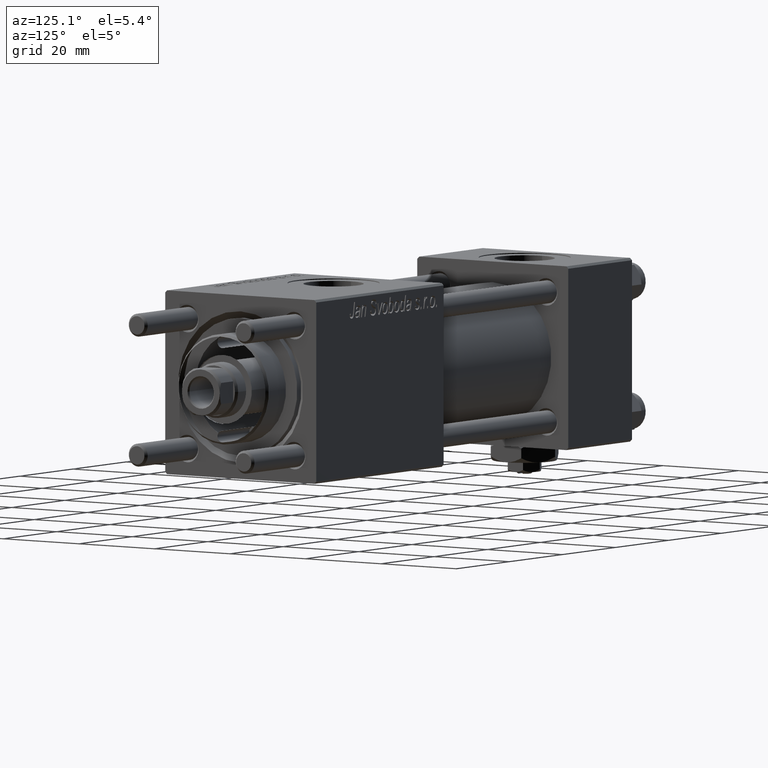
[diagram: clean part render]
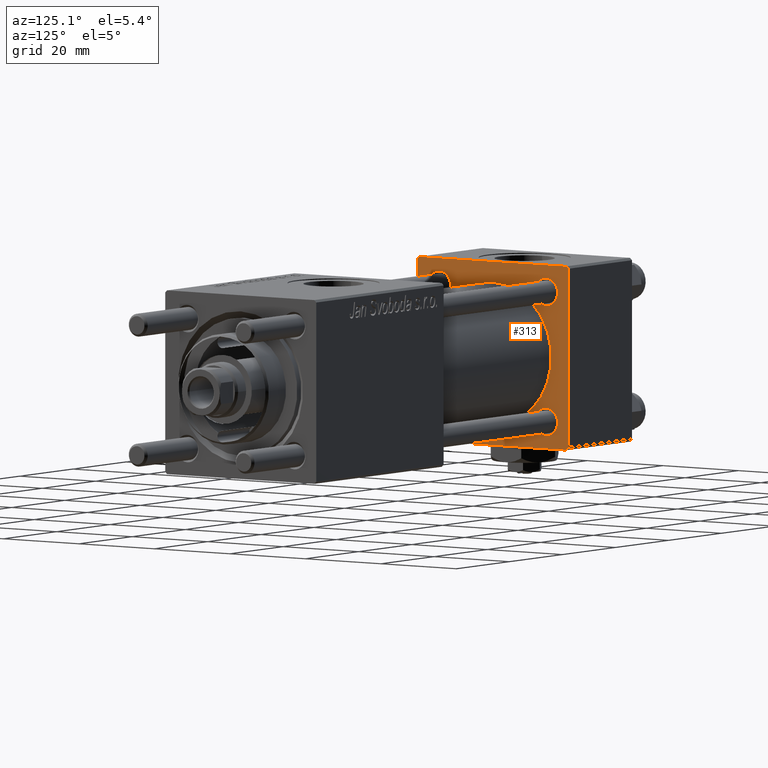
[diagram: same view with one face highlighted and labeled with its STEP entity id]
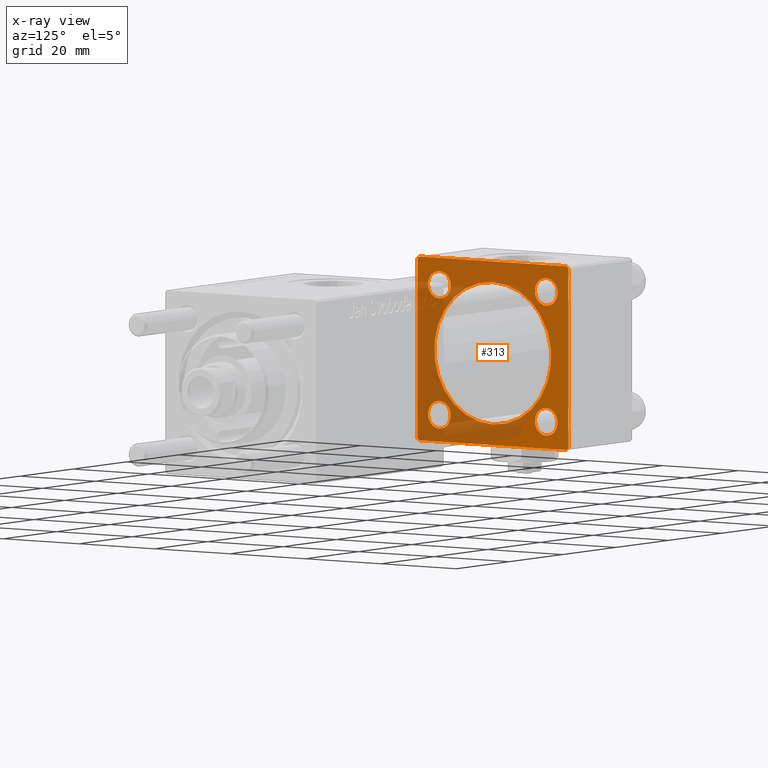
[diagram: x-ray of the same camera — body ghosted, the highlighted face saturated]
A machine part, auxiliary view. The second image highlights one B-rep face of the part: STEP entity #313.
The next image is the same camera in x-ray: the body ghosted, the highlighted face saturated — about 40% of this face is hidden behind the body in this view.
In plain terms, the highlighted planar face has unit normal (-1, 0, 0).
Its self-contained STEP definition (entity closure, byte-faithful):
#313 = ADVANCED_FACE ( 'NONE', ( #16205, #39022, #56525, #30139, #43188, #2592 ), #42609, .F. ) ;
#660 = DIRECTION ( 'NONE',  ( 0.000000000000000000, 0.000000000000000000, 1.000000000000000000 ) ) ;
#723 = DIRECTION ( 'NONE',  ( 0.000000000000000000, 0.000000000000000000, 1.000000000000000000 ) ) ;
#2015 = LINE ( 'NONE', #6460, #24792 ) ;
#2039 = AXIS2_PLACEMENT_3D ( 'NONE', #58540, #27987, #13169 ) ;
#2069 = LINE ( 'NONE', #54963, #7809 ) ;
#2163 = EDGE_CURVE ( 'NONE', #5548, #53330, #49706, .T. ) ;
#2592 = FACE_OUTER_BOUND ( 'NONE', #30805, .T. ) ;
#2683 = CARTESIAN_POINT ( 'NONE',  ( 24.00000000000000000, 14.14999999999999858, 17.14999999999997726 ) ) ;
#2700 = DIRECTION ( 'NONE',  ( -0.000000000000000000, 0.7071067811865524577, 0.7071067811865426878 ) ) ;
#3296 = DIRECTION ( 'NONE',  ( 0.000000000000000000, 0.000000000000000000, 1.000000000000000000 ) ) ;
#3554 = DIRECTION ( 'NONE',  ( -1.000000000000000000, -0.000000000000000000, -0.000000000000000000 ) ) ;
#3641 = CARTESIAN_POINT ( 'NONE',  ( 24.00000000000000000, -20.00000000000000355, 19.49999999999998224 ) ) ;
#5537 = AXIS2_PLACEMENT_3D ( 'NONE', #48298, #3554, #21040 ) ;
#5548 = VERTEX_POINT ( 'NONE', #16017 ) ;
#5691 = CARTESIAN_POINT ( 'NONE',  ( 24.00000000000000000, -14.14999999999999503, 14.15000000000000391 ) ) ;
#6460 = CARTESIAN_POINT ( 'NONE',  ( 24.00000000000000000, -20.00000000000000355, 19.49999999999998224 ) ) ;
#6864 = VERTEX_POINT ( 'NONE', #34251 ) ;
#7695 = CIRCLE ( 'NONE', #32264, 2.999999999999976463 ) ;
#7781 = CARTESIAN_POINT ( 'NONE',  ( 24.00000000000000000, -20.00000000000000000, -19.49999999999999645 ) ) ;
#7809 = VECTOR ( 'NONE', #18817, 999.9999999999998863 ) ;
#8231 = ORIENTED_EDGE ( 'NONE', *, *, #30123, .T. ) ;
#8264 = CARTESIAN_POINT ( 'NONE',  ( 24.00000000000000000, 14.14999999999999858, -17.14999999999997726 ) ) ;
#8689 = ORIENTED_EDGE ( 'NONE', *, *, #57250, .T. ) ;
#9981 = CIRCLE ( 'NONE', #43093, 3.000000000000004441 ) ;
#10646 = EDGE_CURVE ( 'NONE', #44333, #6864, #56269, .T. ) ;
#11481 = DIRECTION ( 'NONE',  ( -1.000000000000000000, -0.000000000000000000, -0.000000000000000000 ) ) ;
#11609 = CARTESIAN_POINT ( 'NONE',  ( 24.00000000000000000, 14.14999999999999858, -14.15000000000000036 ) ) ;
#11772 = CARTESIAN_POINT ( 'NONE',  ( 24.00000000000000000, 0.000000000000000000, 0.000000000000000000 ) ) ;
#12225 = VERTEX_POINT ( 'NONE', #47758 ) ;
#12274 = EDGE_CURVE ( 'NONE', #30451, #44253, #48494, .T. ) ;
#12334 = AXIS2_PLACEMENT_3D ( 'NONE', #5691, #42134, #660 ) ;
#12463 = CIRCLE ( 'NONE', #44664, 2.999999999999973355 ) ;
#12682 = EDGE_CURVE ( 'NONE', #5548, #44333, #2069, .T. ) ;
#13075 = DIRECTION ( 'NONE',  ( -1.000000000000000000, -0.000000000000000000, -0.000000000000000000 ) ) ;
#13169 = DIRECTION ( 'NONE',  ( 0.000000000000000000, 0.000000000000000000, 1.000000000000000000 ) ) ;
#13706 = EDGE_CURVE ( 'NONE', #39092, #26765, #45672, .T. ) ;
#14089 = DIRECTION ( 'NONE',  ( -1.000000000000000000, -0.000000000000000000, -0.000000000000000000 ) ) ;
#14254 = DIRECTION ( 'NONE',  ( 0.000000000000000000, 0.000000000000000000, 1.000000000000000000 ) ) ;
#14386 = VERTEX_POINT ( 'NONE', #44590 ) ;
#14946 = VERTEX_POINT ( 'NONE', #58321 ) ;
#15106 = ORIENTED_EDGE ( 'NONE', *, *, #45899, .T. ) ;
#15350 = DIRECTION ( 'NONE',  ( -0.000000000000000000, 0.000000000000000000, 1.000000000000000000 ) ) ;
#16017 = CARTESIAN_POINT ( 'NONE',  ( 24.00000000000000000, 20.00000000000000000, 19.49999999999999289 ) ) ;
#16055 = CARTESIAN_POINT ( 'NONE',  ( 24.00000000000000000, -2.602085213965210642E-15, 15.50000000000000000 ) ) ;
#16205 = FACE_BOUND ( 'NONE', #43229, .T. ) ;
#16324 = CARTESIAN_POINT ( 'NONE',  ( 24.00000000000000000, -7.038826752868131828E-16, -15.50000000000000000 ) ) ;
#16639 = CARTESIAN_POINT ( 'NONE',  ( 24.00000000000000000, 19.50000000000000000, 20.00000000000000000 ) ) ;
#17658 = EDGE_CURVE ( 'NONE', #12225, #26765, #19078, .T. ) ;
#18162 = VECTOR ( 'NONE', #51238, 1000.000000000000000 ) ;
#18343 = CIRCLE ( 'NONE', #53350, 2.999999999999976463 ) ;
#18609 = ORIENTED_EDGE ( 'NONE', *, *, #17658, .F. ) ;
#18817 = DIRECTION ( 'NONE',  ( 0.000000000000000000, -0.7071067811865425767, 0.7071067811865525687 ) ) ;
#18999 = DIRECTION ( 'NONE',  ( 0.000000000000000000, 0.7071067811865401342, -0.7071067811865549002 ) ) ;
#19078 = LINE ( 'NONE', #27385, #43930 ) ;
#19080 = VERTEX_POINT ( 'NONE', #49008 ) ;
#19823 = CARTESIAN_POINT ( 'NONE',  ( 24.00000000000000000, 20.00000000000000000, 20.00000000000000000 ) ) ;
#19915 = VECTOR ( 'NONE', #22157, 1000.000000000000000 ) ;
#20120 = VERTEX_POINT ( 'NONE', #49540 ) ;
#20971 = CIRCLE ( 'NONE', #2039, 15.50000000000000000 ) ;
#21040 = DIRECTION ( 'NONE',  ( 0.000000000000000000, 0.000000000000000000, 1.000000000000000000 ) ) ;
#21042 = ORIENTED_EDGE ( 'NONE', *, *, #23981, .T. ) ;
#21299 = CIRCLE ( 'NONE', #22379, 3.000000000000004441 ) ;
#21390 = CARTESIAN_POINT ( 'NONE',  ( 24.00000000000000000, -19.50000000000000711, -20.00000000000000000 ) ) ;
#22106 = VERTEX_POINT ( 'NONE', #8264 ) ;
#22157 = DIRECTION ( 'NONE',  ( 0.000000000000000000, 0.000000000000000000, -1.000000000000000000 ) ) ;
#22379 = AXIS2_PLACEMENT_3D ( 'NONE', #51212, #11481, #29566 ) ;
#23161 = CARTESIAN_POINT ( 'NONE',  ( 24.00000000000000000, -14.14999999999999503, -14.15000000000000391 ) ) ;
#23981 = EDGE_CURVE ( 'NONE', #22106, #14946, #7695, .T. ) ;
#24792 = VECTOR ( 'NONE', #52358, 1000.000000000000114 ) ;
#25031 = ORIENTED_EDGE ( 'NONE', *, *, #28965, .F. ) ;
#25557 = CARTESIAN_POINT ( 'NONE',  ( 24.00000000000000000, -14.14999999999999503, 11.15000000000000036 ) ) ;
#26138 = EDGE_CURVE ( 'NONE', #6864, #29217, #2015, .T. ) ;
#26335 = CIRCLE ( 'NONE', #5537, 2.999999999999973355 ) ;
#26765 = VERTEX_POINT ( 'NONE', #21390 ) ;
#27133 = LINE ( 'NONE', #53490, #52187 ) ;
#27188 = CARTESIAN_POINT ( 'NONE',  ( 24.00000000000000000, 20.00000000000000000, 20.00000000000000000 ) ) ;
#27385 = CARTESIAN_POINT ( 'NONE',  ( 24.00000000000000000, 20.00000000000000000, -20.00000000000000711 ) ) ;
#27680 = CARTESIAN_POINT ( 'NONE',  ( 24.00000000000000000, -14.14999999999999503, 14.15000000000000391 ) ) ;
#27987 = DIRECTION ( 'NONE',  ( 1.000000000000000000, 0.000000000000000000, 0.000000000000000000 ) ) ;
#28805 = LINE ( 'NONE', #43299, #44183 ) ;
#28965 = EDGE_CURVE ( 'NONE', #44253, #30451, #20971, .T. ) ;
#29217 = VERTEX_POINT ( 'NONE', #3641 ) ;
#29388 = ORIENTED_EDGE ( 'NONE', *, *, #10646, .T. ) ;
#29566 = DIRECTION ( 'NONE',  ( 0.000000000000000000, 0.000000000000000000, 1.000000000000000000 ) ) ;
#29852 = DIRECTION ( 'NONE',  ( -1.000000000000000000, 0.000000000000000000, -0.000000000000000000 ) ) ;
#30123 = EDGE_CURVE ( 'NONE', #29217, #39092, #27133, .T. ) ;
#30139 = FACE_BOUND ( 'NONE', #53105, .T. ) ;
#30451 = VERTEX_POINT ( 'NONE', #16324 ) ;
#30805 = EDGE_LOOP ( 'NONE', ( #18609, #36369, #45267, #47675, #29388, #54430, #8231, #50737 ) ) ;
#30984 = EDGE_CURVE ( 'NONE', #20120, #53779, #12463, .T. ) ;
#31504 = ORIENTED_EDGE ( 'NONE', *, *, #44724, .T. ) ;
#31829 = DIRECTION ( 'NONE',  ( -1.000000000000000000, -0.000000000000000000, -0.000000000000000000 ) ) ;
#32264 = AXIS2_PLACEMENT_3D ( 'NONE', #39887, #14089, #33051 ) ;
#33051 = DIRECTION ( 'NONE',  ( 0.000000000000000000, 0.000000000000000000, 1.000000000000000000 ) ) ;
#34251 = CARTESIAN_POINT ( 'NONE',  ( 24.00000000000000000, -19.49999999999999289, 19.99999999999998934 ) ) ;
#34402 = DIRECTION ( 'NONE',  ( 1.000000000000000000, 0.000000000000000000, 0.000000000000000000 ) ) ;
#35575 = CIRCLE ( 'NONE', #46986, 3.000000000000004441 ) ;
#36267 = DIRECTION ( 'NONE',  ( 0.000000000000000000, -1.000000000000000000, 1.734723475976807094E-16 ) ) ;
#36369 = ORIENTED_EDGE ( 'NONE', *, *, #49656, .T. ) ;
#36393 = EDGE_CURVE ( 'NONE', #14946, #22106, #18343, .T. ) ;
#36984 = CARTESIAN_POINT ( 'NONE',  ( 24.00000000000000000, 20.00000000000000000, -19.50000000000002132 ) ) ;
#37905 = CIRCLE ( 'NONE', #12334, 3.000000000000004441 ) ;
#38321 = DIRECTION ( 'NONE',  ( 0.000000000000000000, 0.000000000000000000, 1.000000000000000000 ) ) ;
#39022 = FACE_BOUND ( 'NONE', #54142, .T. ) ;
#39092 = VERTEX_POINT ( 'NONE', #7781 ) ;
#39887 = CARTESIAN_POINT ( 'NONE',  ( 24.00000000000000000, 14.14999999999999858, -14.15000000000000036 ) ) ;
#39944 = AXIS2_PLACEMENT_3D ( 'NONE', #57233, #34402, #3296 ) ;
#40961 = EDGE_LOOP ( 'NONE', ( #25031, #52249 ) ) ;
#41236 = CARTESIAN_POINT ( 'NONE',  ( 24.00000000000000000, -19.50000000000000711, -20.00000000000000000 ) ) ;
#42134 = DIRECTION ( 'NONE',  ( -1.000000000000000000, -0.000000000000000000, -0.000000000000000000 ) ) ;
#42609 = PLANE ( 'NONE',  #52018 ) ;
#43030 = DIRECTION ( 'NONE',  ( -1.000000000000000000, -0.000000000000000000, -0.000000000000000000 ) ) ;
#43093 = AXIS2_PLACEMENT_3D ( 'NONE', #23161, #13075, #14254 ) ;
#43188 = FACE_BOUND ( 'NONE', #40961, .T. ) ;
#43229 = EDGE_LOOP ( 'NONE', ( #31504, #15106 ) ) ;
#43299 = CARTESIAN_POINT ( 'NONE',  ( 24.00000000000000000, 20.00000000000000000, -19.50000000000002132 ) ) ;
#43498 = VERTEX_POINT ( 'NONE', #53936 ) ;
#43604 = DIRECTION ( 'NONE',  ( 0.000000000000000000, 0.000000000000000000, 1.000000000000000000 ) ) ;
#43882 = ORIENTED_EDGE ( 'NONE', *, *, #48428, .T. ) ;
#43930 = VECTOR ( 'NONE', #36267, 1000.000000000000000 ) ;
#44183 = VECTOR ( 'NONE', #2700, 1000.000000000000000 ) ;
#44253 = VERTEX_POINT ( 'NONE', #16055 ) ;
#44333 = VERTEX_POINT ( 'NONE', #16639 ) ;
#44590 = CARTESIAN_POINT ( 'NONE',  ( 24.00000000000000000, -14.14999999999999503, -17.15000000000000924 ) ) ;
#44611 = DIRECTION ( 'NONE',  ( 0.000000000000000000, 8.673617379884036705E-17, -1.000000000000000000 ) ) ;
#44664 = AXIS2_PLACEMENT_3D ( 'NONE', #54346, #31829, #723 ) ;
#44724 = EDGE_CURVE ( 'NONE', #14386, #19080, #21299, .T. ) ;
#45267 = ORIENTED_EDGE ( 'NONE', *, *, #2163, .F. ) ;
#45420 = ORIENTED_EDGE ( 'NONE', *, *, #53842, .T. ) ;
#45672 = LINE ( 'NONE', #41236, #48541 ) ;
#45753 = DIRECTION ( 'NONE',  ( -1.000000000000000000, -0.000000000000000000, -0.000000000000000000 ) ) ;
#45899 = EDGE_CURVE ( 'NONE', #19080, #14386, #9981, .T. ) ;
#46070 = EDGE_LOOP ( 'NONE', ( #43882, #8689 ) ) ;
#46986 = AXIS2_PLACEMENT_3D ( 'NONE', #27680, #45753, #38321 ) ;
#47675 = ORIENTED_EDGE ( 'NONE', *, *, #12682, .T. ) ;
#47758 = CARTESIAN_POINT ( 'NONE',  ( 24.00000000000000000, 19.50000000000000711, -20.00000000000000711 ) ) ;
#48298 = CARTESIAN_POINT ( 'NONE',  ( 24.00000000000000000, 14.14999999999999858, 14.15000000000000036 ) ) ;
#48428 = EDGE_CURVE ( 'NONE', #53621, #43498, #35575, .T. ) ;
#48494 = CIRCLE ( 'NONE', #39944, 15.50000000000000000 ) ;
#48541 = VECTOR ( 'NONE', #18999, 1000.000000000000000 ) ;
#49008 = CARTESIAN_POINT ( 'NONE',  ( 24.00000000000000000, -14.14999999999999503, -11.15000000000000036 ) ) ;
#49540 = CARTESIAN_POINT ( 'NONE',  ( 24.00000000000000000, 14.14999999999999858, 11.15000000000002700 ) ) ;
#49656 = EDGE_CURVE ( 'NONE', #12225, #53330, #28805, .T. ) ;
#49706 = LINE ( 'NONE', #27188, #19915 ) ;
#50737 = ORIENTED_EDGE ( 'NONE', *, *, #13706, .T. ) ;
#51212 = CARTESIAN_POINT ( 'NONE',  ( 24.00000000000000000, -14.14999999999999503, -14.15000000000000391 ) ) ;
#51238 = DIRECTION ( 'NONE',  ( 0.000000000000000000, -1.000000000000000000, -2.602085213965210149E-16 ) ) ;
#52018 = AXIS2_PLACEMENT_3D ( 'NONE', #11772, #29852, #15350 ) ;
#52187 = VECTOR ( 'NONE', #44611, 1000.000000000000000 ) ;
#52249 = ORIENTED_EDGE ( 'NONE', *, *, #12274, .F. ) ;
#52358 = DIRECTION ( 'NONE',  ( -0.000000000000000000, -0.7071067811865500152, -0.7071067811865451302 ) ) ;
#53105 = EDGE_LOOP ( 'NONE', ( #56757, #45420 ) ) ;
#53330 = VERTEX_POINT ( 'NONE', #36984 ) ;
#53350 = AXIS2_PLACEMENT_3D ( 'NONE', #11609, #43030, #43604 ) ;
#53490 = CARTESIAN_POINT ( 'NONE',  ( 24.00000000000000000, -20.00000000000000355, 19.99999999999998934 ) ) ;
#53621 = VERTEX_POINT ( 'NONE', #25557 ) ;
#53762 = ORIENTED_EDGE ( 'NONE', *, *, #36393, .T. ) ;
#53779 = VERTEX_POINT ( 'NONE', #2683 ) ;
#53842 = EDGE_CURVE ( 'NONE', #53779, #20120, #26335, .T. ) ;
#53936 = CARTESIAN_POINT ( 'NONE',  ( 24.00000000000000000, -14.14999999999999503, 17.15000000000000924 ) ) ;
#54142 = EDGE_LOOP ( 'NONE', ( #21042, #53762 ) ) ;
#54346 = CARTESIAN_POINT ( 'NONE',  ( 24.00000000000000000, 14.14999999999999858, 14.15000000000000036 ) ) ;
#54430 = ORIENTED_EDGE ( 'NONE', *, *, #26138, .T. ) ;
#54963 = CARTESIAN_POINT ( 'NONE',  ( 24.00000000000000000, 19.50000000000000000, 20.00000000000000000 ) ) ;
#56269 = LINE ( 'NONE', #19823, #18162 ) ;
#56525 = FACE_BOUND ( 'NONE', #46070, .T. ) ;
#56757 = ORIENTED_EDGE ( 'NONE', *, *, #30984, .T. ) ;
#57233 = CARTESIAN_POINT ( 'NONE',  ( 24.00000000000000000, -2.602085213965210642E-15, 0.000000000000000000 ) ) ;
#57250 = EDGE_CURVE ( 'NONE', #43498, #53621, #37905, .T. ) ;
#58321 = CARTESIAN_POINT ( 'NONE',  ( 24.00000000000000000, 14.14999999999999858, -11.15000000000002700 ) ) ;
#58540 = CARTESIAN_POINT ( 'NONE',  ( 24.00000000000000000, -2.602085213965210642E-15, 0.000000000000000000 ) ) ;